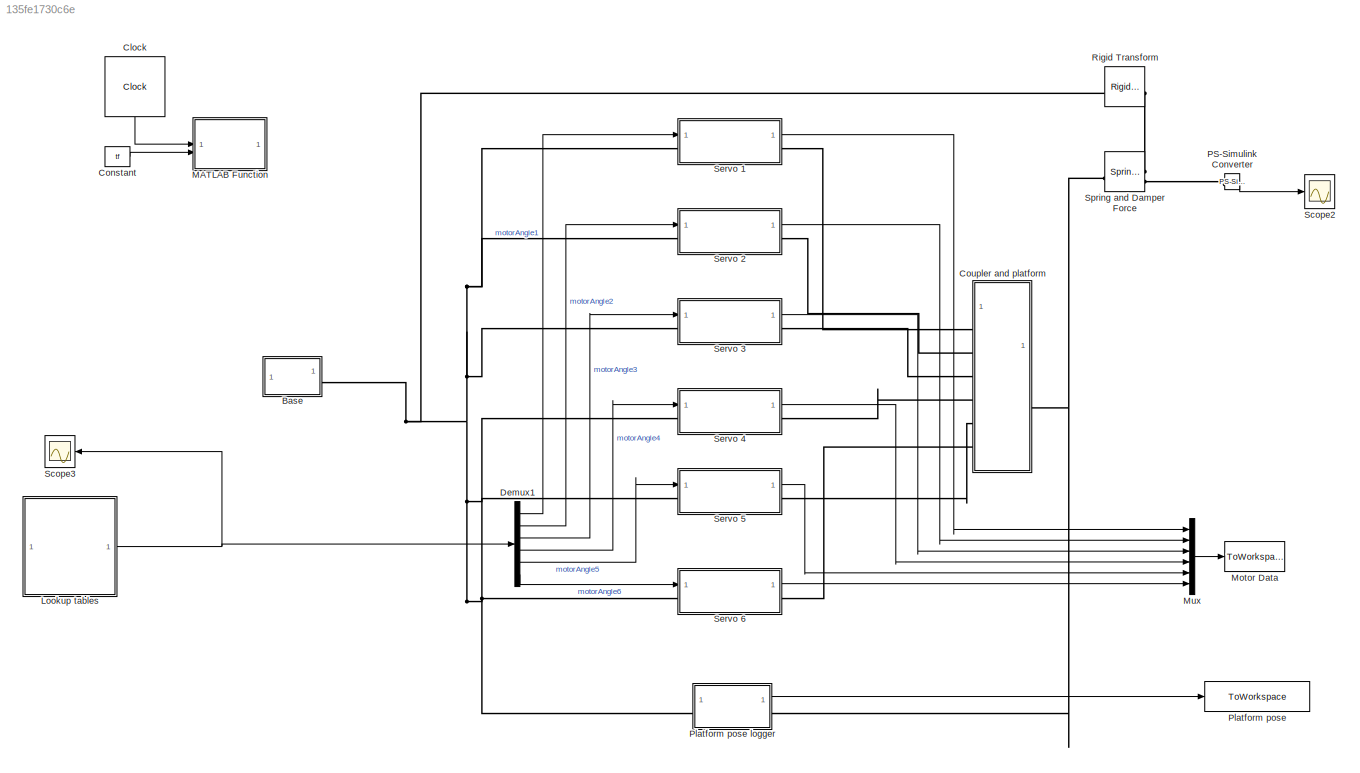
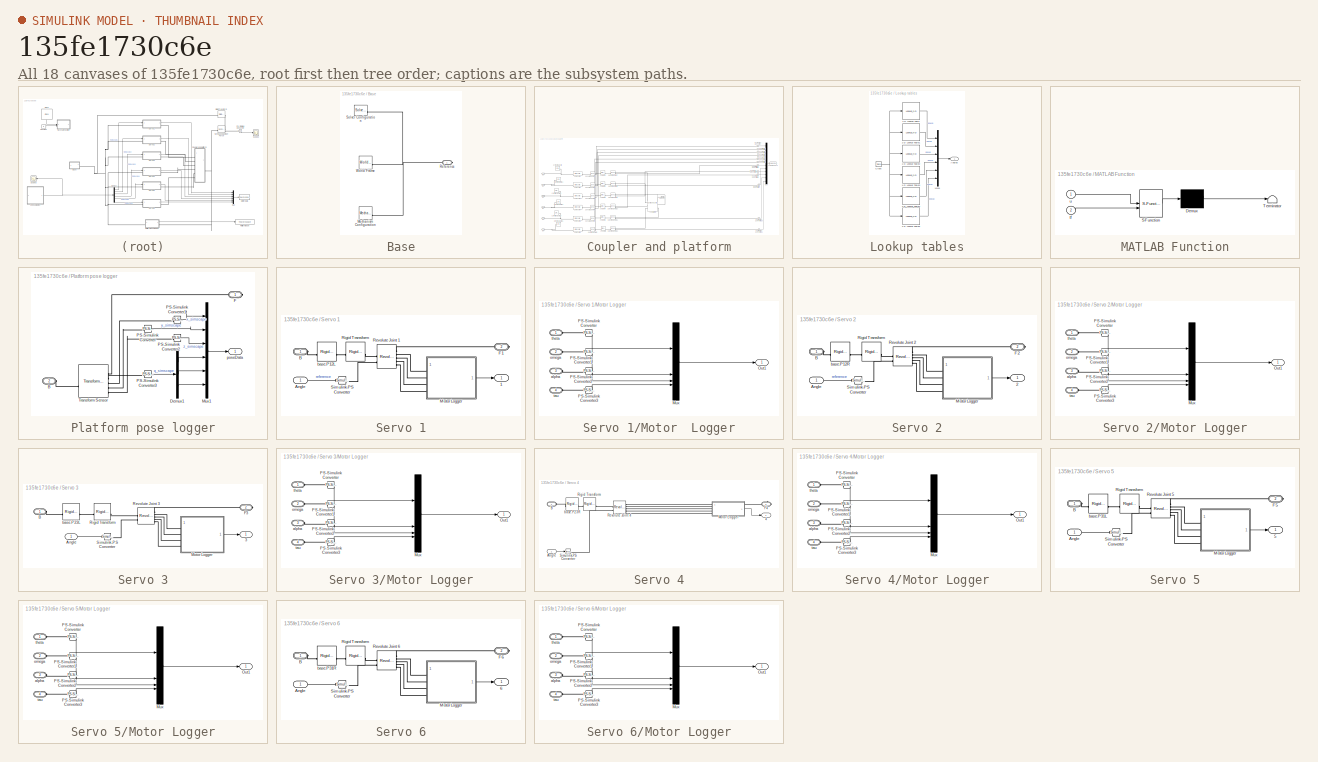
[diagram: thumbnail index - all 18 canvases of the model, root first then tree order]
MODEL slx_135fe1730c6e
KIND model
CONFIG AbsTol = 1e-4
CONFIG EnableMultiTasking = off
CONFIG FixedStep = 1e-4
CONFIG MaxStep = 1e-4
CONFIG MinStep = auto
CONFIG RelTol = 1e-4
CONFIG SampleTimeConstraint = Unconstrained
CONFIG SolverName = FixedStepAuto
CONFIG StartTime = 0.0
CONFIG StopTime = tf
BLOCK [SubSystem] Base
BLOCK [Reference] Base/Mechanism Configuration  REF=sm_lib/Utilities/Mechanism
Configuration
  SourceBlock = sm_lib/Utilities/Mechanism\nConfiguration
  SourceType = Mechanism\nConfiguration
BLOCK [PMIOPort] Base/Reference
  Side = Right
BLOCK [Reference] Base/Solver Configuration  REF=nesl_utility/Solver
Configuration
  SourceBlock = nesl_utility/Solver\nConfiguration
  SourceType = Solver\nConfiguration
BLOCK [Reference] Base/World Frame  REF=sm_lib/Frames and
Transforms/World Frame
  SourceBlock = sm_lib/Frames and\nTransforms/World Frame
  SourceType = World Frame
BLOCK [Clock] Clock
  DisplayTime = on
  NameLocation = left
BLOCK [Constant] Constant
  Value = tf
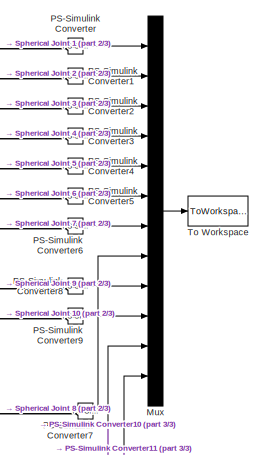
[diagram: Coupler and platform - part 1/3, top right region]
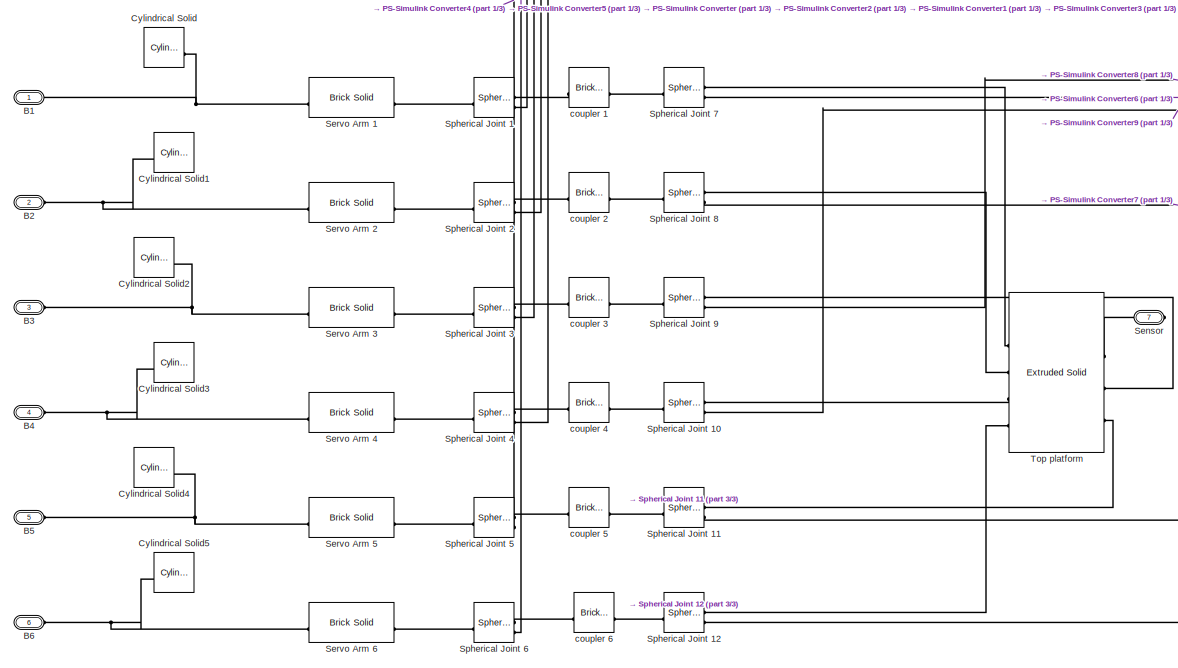
[diagram: Coupler and platform - part 2/3, left side, full height]
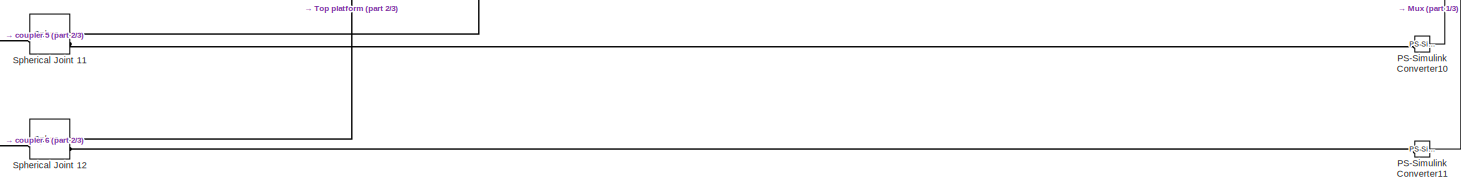
[diagram: Coupler and platform - part 3/3, bottom center region]
BLOCK [SubSystem] Coupler and platform
BLOCK [PMIOPort] Coupler and platform/B1
  Side = Left
BLOCK [PMIOPort] Coupler and platform/B2
  Port = 2
  Side = Left
BLOCK [PMIOPort] Coupler and platform/B3
  Port = 3
  Side = Left
BLOCK [PMIOPort] Coupler and platform/B4
  Port = 4
  Side = Left
BLOCK [PMIOPort] Coupler and platform/B5
  Port = 5
  Side = Left
BLOCK [PMIOPort] Coupler and platform/B6
  Port = 6
  Side = Left
BLOCK [Reference] Coupler and platform/Cylindrical Solid  REF=sm_lib/Body Elements/Cylindrical Solid
  SourceBlock = sm_lib/Body Elements/Cylindrical Solid
  SourceType = Cylindrical Solid
BLOCK [Reference] Coupler and platform/Cylindrical Solid1  REF=sm_lib/Body Elements/Cylindrical Solid
  SourceBlock = sm_lib/Body Elements/Cylindrical Solid
  SourceType = Cylindrical Solid
BLOCK [Reference] Coupler and platform/Cylindrical Solid2  REF=sm_lib/Body Elements/Cylindrical Solid
  SourceBlock = sm_lib/Body Elements/Cylindrical Solid
  SourceType = Cylindrical Solid
BLOCK [Reference] Coupler and platform/Cylindrical Solid3  REF=sm_lib/Body Elements/Cylindrical Solid
  SourceBlock = sm_lib/Body Elements/Cylindrical Solid
  SourceType = Cylindrical Solid
BLOCK [Reference] Coupler and platform/Cylindrical Solid4  REF=sm_lib/Body Elements/Cylindrical Solid
  SourceBlock = sm_lib/Body Elements/Cylindrical Solid
  SourceType = Cylindrical Solid
BLOCK [Reference] Coupler and platform/Cylindrical Solid5  REF=sm_lib/Body Elements/Cylindrical Solid
  SourceBlock = sm_lib/Body Elements/Cylindrical Solid
  SourceType = Cylindrical Solid
BLOCK [Mux] Coupler and platform/Mux
  DisplayOption = bar
  Inputs = 12
BLOCK [Reference] Coupler and platform/PS-Simulink Converter  REF=nesl_utility/PS-Simulink
Converter
  SourceBlock = nesl_utility/PS-Simulink\nConverter
  SourceType = PS-Simulink\nConverter
BLOCK [Reference] Coupler and platform/PS-Simulink Converter1  REF=nesl_utility/PS-Simulink
Converter
  SourceBlock = nesl_utility/PS-Simulink\nConverter
  SourceType = PS-Simulink\nConverter
BLOCK [Reference] Coupler and platform/PS-Simulink Converter10  REF=nesl_utility/PS-Simulink
Converter
  SourceBlock = nesl_utility/PS-Simulink\nConverter
  SourceType = PS-Simulink\nConverter
BLOCK [Reference] Coupler and platform/PS-Simulink Converter11  REF=nesl_utility/PS-Simulink
Converter
  SourceBlock = nesl_utility/PS-Simulink\nConverter
  SourceType = PS-Simulink\nConverter
BLOCK [Reference] Coupler and platform/PS-Simulink Converter2  REF=nesl_utility/PS-Simulink
Converter
  SourceBlock = nesl_utility/PS-Simulink\nConverter
  SourceType = PS-Simulink\nConverter
BLOCK [Reference] Coupler and platform/PS-Simulink Converter3  REF=nesl_utility/PS-Simulink
Converter
  SourceBlock = nesl_utility/PS-Simulink\nConverter
  SourceType = PS-Simulink\nConverter
BLOCK [Reference] Coupler and platform/PS-Simulink Converter4  REF=nesl_utility/PS-Simulink
Converter
  SourceBlock = nesl_utility/PS-Simulink\nConverter
  SourceType = PS-Simulink\nConverter
BLOCK [Reference] Coupler and platform/PS-Simulink Converter5  REF=nesl_utility/PS-Simulink
Converter
  SourceBlock = nesl_utility/PS-Simulink\nConverter
  SourceType = PS-Simulink\nConverter
BLOCK [Reference] Coupler and platform/PS-Simulink Converter6  REF=nesl_utility/PS-Simulink
Converter
  SourceBlock = nesl_utility/PS-Simulink\nConverter
  SourceType = PS-Simulink\nConverter
BLOCK [Reference] Coupler and platform/PS-Simulink Converter7  REF=nesl_utility/PS-Simulink
Converter
  SourceBlock = nesl_utility/PS-Simulink\nConverter
  SourceType = PS-Simulink\nConverter
BLOCK [Reference] Coupler and platform/PS-Simulink Converter8  REF=nesl_utility/PS-Simulink
Converter
  SourceBlock = nesl_utility/PS-Simulink\nConverter
  SourceType = PS-Simulink\nConverter
BLOCK [Reference] Coupler and platform/PS-Simulink Converter9  REF=nesl_utility/PS-Simulink
Converter
  SourceBlock = nesl_utility/PS-Simulink\nConverter
  SourceType = PS-Simulink\nConverter
BLOCK [PMIOPort] Coupler and platform/Sensor
  NameLocation = top
  Port = 7
  Side = Right
BLOCK [Reference] Coupler and platform/Servo Arm 1  REF=sm_lib/Body Elements/Brick Solid
  SourceBlock = sm_lib/Body Elements/Brick Solid
  SourceType = Brick Solid
BLOCK [Reference] Coupler and platform/Servo Arm 2  REF=sm_lib/Body Elements/Brick Solid
  SourceBlock = sm_lib/Body Elements/Brick Solid
  SourceType = Brick Solid
BLOCK [Reference] Coupler and platform/Servo Arm 3  REF=sm_lib/Body Elements/Brick Solid
  SourceBlock = sm_lib/Body Elements/Brick Solid
  SourceType = Brick Solid
BLOCK [Reference] Coupler and platform/Servo Arm 4  REF=sm_lib/Body Elements/Brick Solid
  SourceBlock = sm_lib/Body Elements/Brick Solid
  SourceType = Brick Solid
BLOCK [Reference] Coupler and platform/Servo Arm 5  REF=sm_lib/Body Elements/Brick Solid
  SourceBlock = sm_lib/Body Elements/Brick Solid
  SourceType = Brick Solid
BLOCK [Reference] Coupler and platform/Servo Arm 6  REF=sm_lib/Body Elements/Brick Solid
  SourceBlock = sm_lib/Body Elements/Brick Solid
  SourceType = Brick Solid
BLOCK [Reference] Coupler and platform/Spherical Joint 1  REF=sm_lib/Joints/Spherical
Joint
  SourceBlock = sm_lib/Joints/Spherical\nJoint
  SourceType = Spherical\nJoint
BLOCK [Reference] Coupler and platform/Spherical Joint 10  REF=sm_lib/Joints/Spherical
Joint
  SourceBlock = sm_lib/Joints/Spherical\nJoint
  SourceType = Spherical\nJoint
BLOCK [Reference] Coupler and platform/Spherical Joint 11  REF=sm_lib/Joints/Spherical
Joint
  SourceBlock = sm_lib/Joints/Spherical\nJoint
  SourceType = Spherical\nJoint
BLOCK [Reference] Coupler and platform/Spherical Joint 12  REF=sm_lib/Joints/Spherical
Joint
  SourceBlock = sm_lib/Joints/Spherical\nJoint
  SourceType = Spherical\nJoint
BLOCK [Reference] Coupler and platform/Spherical Joint 2  REF=sm_lib/Joints/Spherical
Joint
  SourceBlock = sm_lib/Joints/Spherical\nJoint
  SourceType = Spherical\nJoint
BLOCK [Reference] Coupler and platform/Spherical Joint 3  REF=sm_lib/Joints/Spherical
Joint
  SourceBlock = sm_lib/Joints/Spherical\nJoint
  SourceType = Spherical\nJoint
BLOCK [Reference] Coupler and platform/Spherical Joint 4  REF=sm_lib/Joints/Spherical
Joint
  SourceBlock = sm_lib/Joints/Spherical\nJoint
  SourceType = Spherical\nJoint
BLOCK [Reference] Coupler and platform/Spherical Joint 5  REF=sm_lib/Joints/Spherical
Joint
  SourceBlock = sm_lib/Joints/Spherical\nJoint
  SourceType = Spherical\nJoint
BLOCK [Reference] Coupler and platform/Spherical Joint 6  REF=sm_lib/Joints/Spherical
Joint
  SourceBlock = sm_lib/Joints/Spherical\nJoint
  SourceType = Spherical\nJoint
BLOCK [Reference] Coupler and platform/Spherical Joint 7  REF=sm_lib/Joints/Spherical
Joint
  SourceBlock = sm_lib/Joints/Spherical\nJoint
  SourceType = Spherical\nJoint
BLOCK [Reference] Coupler and platform/Spherical Joint 8  REF=sm_lib/Joints/Spherical
Joint
  SourceBlock = sm_lib/Joints/Spherical\nJoint
  SourceType = Spherical\nJoint
BLOCK [Reference] Coupler and platform/Spherical Joint 9  REF=sm_lib/Joints/Spherical
Joint
  SourceBlock = sm_lib/Joints/Spherical\nJoint
  SourceType = Spherical\nJoint
BLOCK [ToWorkspace] Coupler and platform/To Workspace
  FixptAsFi = on
  MaxDataPoints = inf
  SampleTime = -1
  SaveFormat = Timeseries
  VariableName = sp_joints
BLOCK [Reference] Coupler and platform/Top platform  REF=sm_lib/Body Elements/Extruded Solid
  SourceBlock = sm_lib/Body Elements/Extruded Solid
  SourceType = Extruded Solid
BLOCK [Reference] Coupler and platform/coupler 1  REF=sm_lib/Body Elements/Brick Solid
  SourceBlock = sm_lib/Body Elements/Brick Solid
  SourceType = Brick Solid
BLOCK [Reference] Coupler and platform/coupler 2  REF=sm_lib/Body Elements/Brick Solid
  SourceBlock = sm_lib/Body Elements/Brick Solid
  SourceType = Brick Solid
BLOCK [Reference] Coupler and platform/coupler 3  REF=sm_lib/Body Elements/Brick Solid
  SourceBlock = sm_lib/Body Elements/Brick Solid
  SourceType = Brick Solid
BLOCK [Reference] Coupler and platform/coupler 4  REF=sm_lib/Body Elements/Brick Solid
  SourceBlock = sm_lib/Body Elements/Brick Solid
  SourceType = Brick Solid
BLOCK [Reference] Coupler and platform/coupler 5  REF=sm_lib/Body Elements/Brick Solid
  SourceBlock = sm_lib/Body Elements/Brick Solid
  SourceType = Brick Solid
BLOCK [Reference] Coupler and platform/coupler 6  REF=sm_lib/Body Elements/Brick Solid
  SourceBlock = sm_lib/Body Elements/Brick Solid
  SourceType = Brick Solid
BLOCK [Demux] Demux1
  Outputs = 6
BLOCK [SubSystem] Lookup tables
BLOCK [Lookup_n-D] Lookup tables/1-D Lookup Table
  BreakpointsForDimension1 = motorAngles(:,1)
  InputPortMap = u0
  InternalRulePriority = Speed
  InterpMethod = Cubic spline
  NumberOfTableDimensions = 1
  RndMeth = Simplest
  Table = motorAngles(:,2)
BLOCK [Lookup_n-D] Lookup tables/1-D Lookup Table1
  BreakpointsForDimension1 = motorAngles(:,1)
  InputPortMap = u0
  InternalRulePriority = Speed
  InterpMethod = Cubic spline
  NumberOfTableDimensions = 1
  RndMeth = Simplest
  Table = motorAngles(:,3)
BLOCK [Lookup_n-D] Lookup tables/1-D Lookup Table2
  BreakpointsForDimension1 = motorAngles(:,1)
  InputPortMap = u0
  InternalRulePriority = Speed
  InterpMethod = Cubic spline
  NumberOfTableDimensions = 1
  RndMeth = Simplest
  Table = motorAngles(:,4)
BLOCK [Lookup_n-D] Lookup tables/1-D Lookup Table3
  BreakpointsForDimension1 = motorAngles(:,1)
  InputPortMap = u0
  InternalRulePriority = Speed
  InterpMethod = Cubic spline
  NumberOfTableDimensions = 1
  RndMeth = Simplest
  Table = motorAngles(:,5)
BLOCK [Lookup_n-D] Lookup tables/1-D Lookup Table4
  BreakpointsForDimension1 = motorAngles(:,1)
  InputPortMap = u0
  InternalRulePriority = Speed
  InterpMethod = Cubic spline
  NumberOfTableDimensions = 1
  RndMeth = Simplest
  Table = motorAngles(:,6)
BLOCK [Lookup_n-D] Lookup tables/1-D Lookup Table5
  BreakpointsForDimension1 = motorAngles(:,1)
  InputPortMap = u0
  InternalRulePriority = Speed
  InterpMethod = Cubic spline
  NumberOfTableDimensions = 1
  RndMeth = Simplest
  Table = motorAngles(:,7)
BLOCK [Outport] Lookup tables/Angles
BLOCK [Clock] Lookup tables/Clock
BLOCK [Mux] Lookup tables/Mux1
  DisplayOption = bar
  Inputs = 6
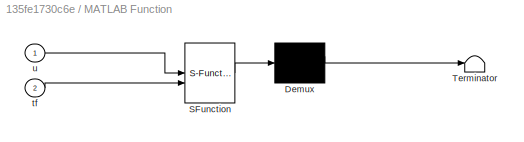
BLOCK [SubSystem] MATLAB Function
  ErrorFcn = Stateflow.Translate.translate
  PermitHierarchicalResolution = ExplicitOnly
  SFBlockType = MATLAB Function
  TreatAsAtomicUnit = on
BLOCK [Demux] MATLAB Function/ Demux 
  Outputs = 1
BLOCK [S-Function] MATLAB Function/ SFunction 
  EnableBusSupport = on
  FunctionName = sf_sfun
  PortCounts = [2 1]
  SFcnIsStateOwnerBlock = off
  SFunctionDeploymentMode = off
  Tag = Stateflow S-Function 2
BLOCK [Terminator] MATLAB Function/ Terminator 
BLOCK [Inport] MATLAB Function/tf
  Port = 2
BLOCK [Inport] MATLAB Function/u
BLOCK [ToWorkspace] Motor Data
  FixptAsFi = on
  MaxDataPoints = inf
  SampleTime = -1
  SaveFormat = Timeseries
  VariableName = simout
BLOCK [Mux] Mux
  DisplayOption = bar
  Inputs = 6
BLOCK [Reference] PS-Simulink Converter  REF=nesl_utility/PS-Simulink
Converter
  Commented = on
  SourceBlock = nesl_utility/PS-Simulink\nConverter
  SourceType = PS-Simulink\nConverter
BLOCK [ToWorkspace] Platform pose
  FixptAsFi = on
  MaxDataPoints = inf
  SampleTime = -1
  SaveFormat = Timeseries
  VariableName = pose_simscape
BLOCK [SubSystem] Platform pose logger
BLOCK [PMIOPort] Platform pose logger/B
  Port = 2
  Side = Left
BLOCK [Demux] Platform pose logger/Demux1
  Outputs = 3
BLOCK [PMIOPort] Platform pose logger/F
  NameLocation = top
  Side = Right
BLOCK [Mux] Platform pose logger/Mux1
  DisplayOption = bar
  Inputs = 6
BLOCK [Reference] Platform pose logger/PS-Simulink Converter  REF=nesl_utility/PS-Simulink
Converter
  SourceBlock = nesl_utility/PS-Simulink\nConverter
  SourceType = PS-Simulink\nConverter
BLOCK [Reference] Platform pose logger/PS-Simulink Converter1  REF=nesl_utility/PS-Simulink
Converter
  SourceBlock = nesl_utility/PS-Simulink\nConverter
  SourceType = PS-Simulink\nConverter
BLOCK [Reference] Platform pose logger/PS-Simulink Converter2  REF=nesl_utility/PS-Simulink
Converter
  SourceBlock = nesl_utility/PS-Simulink\nConverter
  SourceType = PS-Simulink\nConverter
BLOCK [Reference] Platform pose logger/PS-Simulink Converter3  REF=nesl_utility/PS-Simulink
Converter
  SourceBlock = nesl_utility/PS-Simulink\nConverter
  SourceType = PS-Simulink\nConverter
BLOCK [Reference] Platform pose logger/Transform Sensor  REF=sm_lib/Frames and
Transforms/Transform
Sensor
  SourceBlock = sm_lib/Frames and\nTransforms/Transform\nSensor
  SourceType = Transform\nSensor
BLOCK [Outport] Platform pose logger/poseData
BLOCK [Reference] Rigid Transform  REF=sm_lib/Frames and
Transforms/Rigid
Transform
  Commented = on
  SourceBlock = sm_lib/Frames and\nTransforms/Rigid\nTransform
  SourceType = Rigid\nTransform
BLOCK [Scope] Scope2
  Commented = on
  Floating = off
  NumInputPorts = 3
  ScopeSpecificationString = Simulink.scopes.TimeScopeBlockCfg('CurrentConfiguration', extmgr.ConfigurationSet(extmgr.Configuration('Core','General UI',true),extmgr.Configuration('Core','Source UI',true),extmgr.Configuration('Sources','WiredSimulink',true,'DataLoggingVariableName','ScopeData1'),extmgr.Configuration('Visuals','Time Domain',true,'SerializedDisplays',{struct('MinYLimReal','-203.85819','MaxYLimReal','22.65091','Y...<+1643ch>
BLOCK [Scope] Scope3
  Floating = off
  NameLocation = top
  NumInputPorts = 1
  ScopeSpecificationString = Simulink.scopes.TimeScopeBlockCfg('CurrentConfiguration', extmgr.ConfigurationSet(extmgr.Configuration('Core','General UI',true),extmgr.Configuration('Core','Source UI',true),extmgr.Configuration('Sources','WiredSimulink',true,'DataLoggingVariableName','ScopeData2'),extmgr.Configuration('Visuals','Time Domain',true,'SerializedDisplays',{struct('MinYLimReal','-0.00000000000000014','MaxYLimReal','0....<+1660ch>
BLOCK [SubSystem] Servo 1
BLOCK [Outport] Servo 1/1
BLOCK [Inport] Servo 1/Angle
BLOCK [PMIOPort] Servo 1/B
  Side = Left
BLOCK [PMIOPort] Servo 1/F1
  NameLocation = top
  Port = 2
  Side = Right
BLOCK [SubSystem] Servo 1/Motor  Logger
BLOCK [Mux] Servo 1/Motor  Logger/Mux
  DisplayOption = bar
BLOCK [Outport] Servo 1/Motor  Logger/Out1
BLOCK [Reference] Servo 1/Motor  Logger/PS-Simulink Converter  REF=nesl_utility/PS-Simulink
Converter
  SourceBlock = nesl_utility/PS-Simulink\nConverter
  SourceType = PS-Simulink\nConverter
BLOCK [Reference] Servo 1/Motor  Logger/PS-Simulink Converter1  REF=nesl_utility/PS-Simulink
Converter
  SourceBlock = nesl_utility/PS-Simulink\nConverter
  SourceType = PS-Simulink\nConverter
BLOCK [Reference] Servo 1/Motor  Logger/PS-Simulink Converter2  REF=nesl_utility/PS-Simulink
Converter
  SourceBlock = nesl_utility/PS-Simulink\nConverter
  SourceType = PS-Simulink\nConverter
BLOCK [Reference] Servo 1/Motor  Logger/PS-Simulink Converter3  REF=nesl_utility/PS-Simulink
Converter
  SourceBlock = nesl_utility/PS-Simulink\nConverter
  SourceType = PS-Simulink\nConverter
BLOCK [PMIOPort] Servo 1/Motor  Logger/alpha
  Port = 3
  Side = Left
BLOCK [PMIOPort] Servo 1/Motor  Logger/omega
  Port = 2
  Side = Left
BLOCK [PMIOPort] Servo 1/Motor  Logger/tau
  Port = 4
  Side = Left
BLOCK [PMIOPort] Servo 1/Motor  Logger/theta
  Side = Left
BLOCK [Reference] Servo 1/Revolute Joint 1  REF=sm_lib/Joints/Revolute Joint
  SourceBlock = sm_lib/Joints/Revolute Joint
  SourceType = Revolute Joint
BLOCK [Reference] Servo 1/Rigid Transform  REF=sm_lib/Frames and
Transforms/Rigid
Transform
  SourceBlock = sm_lib/Frames and\nTransforms/Rigid\nTransform
  SourceType = Rigid\nTransform
BLOCK [Reference] Servo 1/Simulink-PS Converter  REF=nesl_utility/Simulink-PS
Converter
  SourceBlock = nesl_utility/Simulink-PS\nConverter
  SourceType = Simulink-PS\nConverter
BLOCK [Reference] Servo 1/base.P12L  REF=sm_lib/Frames and
Transforms/Rigid
Transform
  SourceBlock = sm_lib/Frames and\nTransforms/Rigid\nTransform
  SourceType = Rigid\nTransform
BLOCK [SubSystem] Servo 2
BLOCK [Outport] Servo 2/2
BLOCK [Inport] Servo 2/Angle
BLOCK [PMIOPort] Servo 2/B
  Side = Left
BLOCK [PMIOPort] Servo 2/F2
  NameLocation = top
  Port = 2
  Side = Right
BLOCK [SubSystem] Servo 2/Motor Logger
BLOCK [Mux] Servo 2/Motor Logger/Mux
  DisplayOption = bar
BLOCK [Outport] Servo 2/Motor Logger/Out1
BLOCK [Reference] Servo 2/Motor Logger/PS-Simulink Converter  REF=nesl_utility/PS-Simulink
Converter
  SourceBlock = nesl_utility/PS-Simulink\nConverter
  SourceType = PS-Simulink\nConverter
BLOCK [Reference] Servo 2/Motor Logger/PS-Simulink Converter1  REF=nesl_utility/PS-Simulink
Converter
  SourceBlock = nesl_utility/PS-Simulink\nConverter
  SourceType = PS-Simulink\nConverter
BLOCK [Reference] Servo 2/Motor Logger/PS-Simulink Converter2  REF=nesl_utility/PS-Simulink
Converter
  SourceBlock = nesl_utility/PS-Simulink\nConverter
  SourceType = PS-Simulink\nConverter
BLOCK [Reference] Servo 2/Motor Logger/PS-Simulink Converter3  REF=nesl_utility/PS-Simulink
Converter
  SourceBlock = nesl_utility/PS-Simulink\nConverter
  SourceType = PS-Simulink\nConverter
BLOCK [PMIOPort] Servo 2/Motor Logger/alpha
  Port = 3
  Side = Left
BLOCK [PMIOPort] Servo 2/Motor Logger/omega
  Port = 2
  Side = Left
BLOCK [PMIOPort] Servo 2/Motor Logger/tau
  Port = 4
  Side = Left
BLOCK [PMIOPort] Servo 2/Motor Logger/theta
  Side = Left
BLOCK [Reference] Servo 2/Revolute Joint 2  REF=sm_lib/Joints/Revolute Joint
  SourceBlock = sm_lib/Joints/Revolute Joint
  SourceType = Revolute Joint
BLOCK [Reference] Servo 2/Rigid Transform  REF=sm_lib/Frames and
Transforms/Rigid
Transform
  SourceBlock = sm_lib/Frames and\nTransforms/Rigid\nTransform
  SourceType = Rigid\nTransform
BLOCK [Reference] Servo 2/Simulink-PS Converter  REF=nesl_utility/Simulink-PS
Converter
  SourceBlock = nesl_utility/Simulink-PS\nConverter
  SourceType = Simulink-PS\nConverter
BLOCK [Reference] Servo 2/base.P12R  REF=sm_lib/Frames and
Transforms/Rigid
Transform
  SourceBlock = sm_lib/Frames and\nTransforms/Rigid\nTransform
  SourceType = Rigid\nTransform
BLOCK [SubSystem] Servo 3
BLOCK [Outport] Servo 3/3
BLOCK [Inport] Servo 3/Angle
BLOCK [PMIOPort] Servo 3/B
  Side = Left
BLOCK [PMIOPort] Servo 3/F3
  NameLocation = top
  Port = 2
  Side = Right
BLOCK [SubSystem] Servo 3/Motor Logger
BLOCK [Mux] Servo 3/Motor Logger/Mux
  DisplayOption = bar
BLOCK [Outport] Servo 3/Motor Logger/Out1
BLOCK [Reference] Servo 3/Motor Logger/PS-Simulink Converter  REF=nesl_utility/PS-Simulink
Converter
  SourceBlock = nesl_utility/PS-Simulink\nConverter
  SourceType = PS-Simulink\nConverter
BLOCK [Reference] Servo 3/Motor Logger/PS-Simulink Converter1  REF=nesl_utility/PS-Simulink
Converter
  SourceBlock = nesl_utility/PS-Simulink\nConverter
  SourceType = PS-Simulink\nConverter
BLOCK [Reference] Servo 3/Motor Logger/PS-Simulink Converter2  REF=nesl_utility/PS-Simulink
Converter
  SourceBlock = nesl_utility/PS-Simulink\nConverter
  SourceType = PS-Simulink\nConverter
BLOCK [Reference] Servo 3/Motor Logger/PS-Simulink Converter3  REF=nesl_utility/PS-Simulink
Converter
  SourceBlock = nesl_utility/PS-Simulink\nConverter
  SourceType = PS-Simulink\nConverter
BLOCK [PMIOPort] Servo 3/Motor Logger/alpha
  Port = 3
  Side = Left
BLOCK [PMIOPort] Servo 3/Motor Logger/omega
  Port = 2
  Side = Left
BLOCK [PMIOPort] Servo 3/Motor Logger/tau
  Port = 4
  Side = Left
BLOCK [PMIOPort] Servo 3/Motor Logger/theta
  Side = Left
BLOCK [Reference] Servo 3/Revolute Joint 3  REF=sm_lib/Joints/Revolute Joint
  SourceBlock = sm_lib/Joints/Revolute Joint
  SourceType = Revolute Joint
BLOCK [Reference] Servo 3/Rigid Transform  REF=sm_lib/Frames and
Transforms/Rigid
Transform
  SourceBlock = sm_lib/Frames and\nTransforms/Rigid\nTransform
  SourceType = Rigid\nTransform
BLOCK [Reference] Servo 3/Simulink-PS Converter  REF=nesl_utility/Simulink-PS
Converter
  SourceBlock = nesl_utility/Simulink-PS\nConverter
  SourceType = Simulink-PS\nConverter
BLOCK [Reference] Servo 3/base.P23L  REF=sm_lib/Frames and
Transforms/Rigid
Transform
  SourceBlock = sm_lib/Frames and\nTransforms/Rigid\nTransform
  SourceType = Rigid\nTransform
BLOCK [SubSystem] Servo 4
BLOCK [Outport] Servo 4/4
BLOCK [Inport] Servo 4/Angle
BLOCK [PMIOPort] Servo 4/B
  Side = Left
BLOCK [PMIOPort] Servo 4/F4
  NameLocation = top
  Port = 2
  Side = Right
BLOCK [SubSystem] Servo 4/Motor Logger
BLOCK [Mux] Servo 4/Motor Logger/Mux
  DisplayOption = bar
BLOCK [Outport] Servo 4/Motor Logger/Out1
BLOCK [Reference] Servo 4/Motor Logger/PS-Simulink Converter  REF=nesl_utility/PS-Simulink
Converter
  SourceBlock = nesl_utility/PS-Simulink\nConverter
  SourceType = PS-Simulink\nConverter
BLOCK [Reference] Servo 4/Motor Logger/PS-Simulink Converter1  REF=nesl_utility/PS-Simulink
Converter
  SourceBlock = nesl_utility/PS-Simulink\nConverter
  SourceType = PS-Simulink\nConverter
BLOCK [Reference] Servo 4/Motor Logger/PS-Simulink Converter2  REF=nesl_utility/PS-Simulink
Converter
  SourceBlock = nesl_utility/PS-Simulink\nConverter
  SourceType = PS-Simulink\nConverter
BLOCK [Reference] Servo 4/Motor Logger/PS-Simulink Converter3  REF=nesl_utility/PS-Simulink
Converter
  SourceBlock = nesl_utility/PS-Simulink\nConverter
  SourceType = PS-Simulink\nConverter
BLOCK [PMIOPort] Servo 4/Motor Logger/alpha
  Port = 3
  Side = Left
BLOCK [PMIOPort] Servo 4/Motor Logger/omega
  Port = 2
  Side = Left
BLOCK [PMIOPort] Servo 4/Motor Logger/tau
  Port = 4
  Side = Left
BLOCK [PMIOPort] Servo 4/Motor Logger/theta
  Side = Left
BLOCK [Reference] Servo 4/Revolute Joint 4  REF=sm_lib/Joints/Revolute Joint
  SourceBlock = sm_lib/Joints/Revolute Joint
  SourceType = Revolute Joint
BLOCK [Reference] Servo 4/Rigid Transform  REF=sm_lib/Frames and
Transforms/Rigid
Transform
  SourceBlock = sm_lib/Frames and\nTransforms/Rigid\nTransform
  SourceType = Rigid\nTransform
BLOCK [Reference] Servo 4/Simulink-PS Converter  REF=nesl_utility/Simulink-PS
Converter
  SourceBlock = nesl_utility/Simulink-PS\nConverter
  SourceType = Simulink-PS\nConverter
BLOCK [Reference] Servo 4/base.P23R  REF=sm_lib/Frames and
Transforms/Rigid
Transform
  SourceBlock = sm_lib/Frames and\nTransforms/Rigid\nTransform
  SourceType = Rigid\nTransform
BLOCK [SubSystem] Servo 5
BLOCK [Outport] Servo 5/5
BLOCK [Inport] Servo 5/Angle
BLOCK [PMIOPort] Servo 5/B
  Side = Left
BLOCK [PMIOPort] Servo 5/F5
  NameLocation = top
  Port = 2
  Side = Right
BLOCK [SubSystem] Servo 5/Motor Logger
BLOCK [Mux] Servo 5/Motor Logger/Mux
  DisplayOption = bar
BLOCK [Outport] Servo 5/Motor Logger/Out1
BLOCK [Reference] Servo 5/Motor Logger/PS-Simulink Converter  REF=nesl_utility/PS-Simulink
Converter
  SourceBlock = nesl_utility/PS-Simulink\nConverter
  SourceType = PS-Simulink\nConverter
BLOCK [Reference] Servo 5/Motor Logger/PS-Simulink Converter1  REF=nesl_utility/PS-Simulink
Converter
  SourceBlock = nesl_utility/PS-Simulink\nConverter
  SourceType = PS-Simulink\nConverter
BLOCK [Reference] Servo 5/Motor Logger/PS-Simulink Converter2  REF=nesl_utility/PS-Simulink
Converter
  SourceBlock = nesl_utility/PS-Simulink\nConverter
  SourceType = PS-Simulink\nConverter
BLOCK [Reference] Servo 5/Motor Logger/PS-Simulink Converter3  REF=nesl_utility/PS-Simulink
Converter
  SourceBlock = nesl_utility/PS-Simulink\nConverter
  SourceType = PS-Simulink\nConverter
BLOCK [PMIOPort] Servo 5/Motor Logger/alpha
  Port = 3
  Side = Left
BLOCK [PMIOPort] Servo 5/Motor Logger/omega
  Port = 2
  Side = Left
BLOCK [PMIOPort] Servo 5/Motor Logger/tau
  Port = 4
  Side = Left
BLOCK [PMIOPort] Servo 5/Motor Logger/theta
  Side = Left
BLOCK [Reference] Servo 5/Revolute Joint 5  REF=sm_lib/Joints/Revolute Joint
  SourceBlock = sm_lib/Joints/Revolute Joint
  SourceType = Revolute Joint
BLOCK [Reference] Servo 5/Rigid Transform  REF=sm_lib/Frames and
Transforms/Rigid
Transform
  SourceBlock = sm_lib/Frames and\nTransforms/Rigid\nTransform
  SourceType = Rigid\nTransform
BLOCK [Reference] Servo 5/Simulink-PS Converter  REF=nesl_utility/Simulink-PS
Converter
  SourceBlock = nesl_utility/Simulink-PS\nConverter
  SourceType = Simulink-PS\nConverter
BLOCK [Reference] Servo 5/base.P31L  REF=sm_lib/Frames and
Transforms/Rigid
Transform
  SourceBlock = sm_lib/Frames and\nTransforms/Rigid\nTransform
  SourceType = Rigid\nTransform
BLOCK [SubSystem] Servo 6
BLOCK [Outport] Servo 6/6
BLOCK [Inport] Servo 6/Angle
BLOCK [PMIOPort] Servo 6/B
  Side = Left
BLOCK [PMIOPort] Servo 6/F6
  NameLocation = top
  Port = 2
  Side = Right
BLOCK [SubSystem] Servo 6/Motor Logger
BLOCK [Mux] Servo 6/Motor Logger/Mux
  DisplayOption = bar
BLOCK [Outport] Servo 6/Motor Logger/Out1
BLOCK [Reference] Servo 6/Motor Logger/PS-Simulink Converter  REF=nesl_utility/PS-Simulink
Converter
  SourceBlock = nesl_utility/PS-Simulink\nConverter
  SourceType = PS-Simulink\nConverter
BLOCK [Reference] Servo 6/Motor Logger/PS-Simulink Converter1  REF=nesl_utility/PS-Simulink
Converter
  SourceBlock = nesl_utility/PS-Simulink\nConverter
  SourceType = PS-Simulink\nConverter
BLOCK [Reference] Servo 6/Motor Logger/PS-Simulink Converter2  REF=nesl_utility/PS-Simulink
Converter
  SourceBlock = nesl_utility/PS-Simulink\nConverter
  SourceType = PS-Simulink\nConverter
BLOCK [Reference] Servo 6/Motor Logger/PS-Simulink Converter3  REF=nesl_utility/PS-Simulink
Converter
  SourceBlock = nesl_utility/PS-Simulink\nConverter
  SourceType = PS-Simulink\nConverter
BLOCK [PMIOPort] Servo 6/Motor Logger/alpha
  Port = 3
  Side = Left
BLOCK [PMIOPort] Servo 6/Motor Logger/omega
  Port = 2
  Side = Left
BLOCK [PMIOPort] Servo 6/Motor Logger/tau
  Port = 4
  Side = Left
BLOCK [PMIOPort] Servo 6/Motor Logger/theta
  Side = Left
BLOCK [Reference] Servo 6/Revolute Joint 6  REF=sm_lib/Joints/Revolute Joint
  SourceBlock = sm_lib/Joints/Revolute Joint
  SourceType = Revolute Joint
BLOCK [Reference] Servo 6/Rigid Transform  REF=sm_lib/Frames and
Transforms/Rigid
Transform
  SourceBlock = sm_lib/Frames and\nTransforms/Rigid\nTransform
  SourceType = Rigid\nTransform
BLOCK [Reference] Servo 6/Simulink-PS Converter  REF=nesl_utility/Simulink-PS
Converter
  SourceBlock = nesl_utility/Simulink-PS\nConverter
  SourceType = Simulink-PS\nConverter
BLOCK [Reference] Servo 6/base.P31R  REF=sm_lib/Frames and
Transforms/Rigid
Transform
  SourceBlock = sm_lib/Frames and\nTransforms/Rigid\nTransform
  SourceType = Rigid\nTransform
BLOCK [Reference] Spring and Damper Force  REF=sm_lib/Forces and
Torques/Spring and
Damper Force
  Commented = on
  SourceBlock = sm_lib/Forces and\nTorques/Spring and\nDamper Force
  SourceType = Spring and\nDamper Force
LINE Clock:1 -> MATLAB Function:1
LINE Constant:1 -> MATLAB Function:2
LINE Coupler and platform/Mux:1 -> Coupler and platform/To Workspace:1
LINE Coupler and platform/PS-Simulink Converter10:1 -> Coupler and platform/Mux:11
LINE Coupler and platform/PS-Simulink Converter11:1 -> Coupler and platform/Mux:12
LINE Coupler and platform/PS-Simulink Converter1:1 -> Coupler and platform/Mux:2
LINE Coupler and platform/PS-Simulink Converter2:1 -> Coupler and platform/Mux:3
LINE Coupler and platform/PS-Simulink Converter3:1 -> Coupler and platform/Mux:4
LINE Coupler and platform/PS-Simulink Converter4:1 -> Coupler and platform/Mux:5
LINE Coupler and platform/PS-Simulink Converter5:1 -> Coupler and platform/Mux:6
LINE Coupler and platform/PS-Simulink Converter6:1 -> Coupler and platform/Mux:7
LINE Coupler and platform/PS-Simulink Converter7:1 -> Coupler and platform/Mux:8
LINE Coupler and platform/PS-Simulink Converter8:1 -> Coupler and platform/Mux:9
LINE Coupler and platform/PS-Simulink Converter9:1 -> Coupler and platform/Mux:10
LINE Coupler and platform/PS-Simulink Converter:1 -> Coupler and platform/Mux:1
LINE Demux1:1 -> Servo 1:1
LINE Demux1:2 -> Servo 2:1
LINE Demux1:3 -> Servo 3:1
LINE Demux1:4 -> Servo 4:1
LINE Demux1:5 -> Servo 5:1
LINE Demux1:6 -> Servo 6:1
LINE Lookup tables/1-D Lookup Table1:1 -> Lookup tables/Mux1:2
LINE Lookup tables/1-D Lookup Table2:1 -> Lookup tables/Mux1:3
LINE Lookup tables/1-D Lookup Table3:1 -> Lookup tables/Mux1:4
LINE Lookup tables/1-D Lookup Table4:1 -> Lookup tables/Mux1:5
LINE Lookup tables/1-D Lookup Table5:1 -> Lookup tables/Mux1:6
LINE Lookup tables/1-D Lookup Table:1 -> Lookup tables/Mux1:1
NET Lookup tables/Clock:1 -> Lookup tables/1-D Lookup Table1:1, Lookup tables/1-D Lookup Table2:1, Lookup tables/1-D Lookup Table3:1, Lookup tables/1-D Lookup Table4:1, Lookup tables/1-D Lookup Table5:1, Lookup tables/1-D Lookup Table:1
LINE Lookup tables/Mux1:1 -> Lookup tables/Angles:1
NET Lookup tables:1 -> Demux1:1, Scope3:1
LINE Mux:1 -> Motor Data:1
LINE PS-Simulink Converter:1 -> Scope2:1
LINE Platform pose logger/Demux1:1 -> Platform pose logger/Mux1:4
LINE Platform pose logger/Demux1:2 -> Platform pose logger/Mux1:5
LINE Platform pose logger/Demux1:3 -> Platform pose logger/Mux1:6
LINE Platform pose logger/Mux1:1 -> Platform pose logger/poseData:1
LINE Platform pose logger/PS-Simulink Converter1:1 -> Platform pose logger/Mux1:1
LINE Platform pose logger/PS-Simulink Converter2:1 -> Platform pose logger/Mux1:3
LINE Platform pose logger/PS-Simulink Converter3:1 -> Platform pose logger/Demux1:1
LINE Platform pose logger/PS-Simulink Converter:1 -> Platform pose logger/Mux1:2
LINE Platform pose logger:1 -> Platform pose:1
LINE Servo 1/Angle:1 -> Servo 1/Simulink-PS Converter:1
LINE Servo 1/Motor  Logger/Mux:1 -> Servo 1/Motor  Logger/Out1:1
LINE Servo 1/Motor  Logger/PS-Simulink Converter1:1 -> Servo 1/Motor  Logger/Mux:2
LINE Servo 1/Motor  Logger/PS-Simulink Converter2:1 -> Servo 1/Motor  Logger/Mux:3
LINE Servo 1/Motor  Logger/PS-Simulink Converter3:1 -> Servo 1/Motor  Logger/Mux:4
LINE Servo 1/Motor  Logger/PS-Simulink Converter:1 -> Servo 1/Motor  Logger/Mux:1
LINE Servo 1/Motor  Logger:1 -> Servo 1/1:1
LINE Servo 1:1 -> Mux:1
LINE Servo 2/Angle:1 -> Servo 2/Simulink-PS Converter:1
LINE Servo 2/Motor Logger/Mux:1 -> Servo 2/Motor Logger/Out1:1
LINE Servo 2/Motor Logger/PS-Simulink Converter1:1 -> Servo 2/Motor Logger/Mux:2
LINE Servo 2/Motor Logger/PS-Simulink Converter2:1 -> Servo 2/Motor Logger/Mux:3
LINE Servo 2/Motor Logger/PS-Simulink Converter3:1 -> Servo 2/Motor Logger/Mux:4
LINE Servo 2/Motor Logger/PS-Simulink Converter:1 -> Servo 2/Motor Logger/Mux:1
LINE Servo 2/Motor Logger:1 -> Servo 2/2:1
LINE Servo 2:1 -> Mux:2
LINE Servo 3/Angle:1 -> Servo 3/Simulink-PS Converter:1
LINE Servo 3/Motor Logger/Mux:1 -> Servo 3/Motor Logger/Out1:1
LINE Servo 3/Motor Logger/PS-Simulink Converter1:1 -> Servo 3/Motor Logger/Mux:2
LINE Servo 3/Motor Logger/PS-Simulink Converter2:1 -> Servo 3/Motor Logger/Mux:3
LINE Servo 3/Motor Logger/PS-Simulink Converter3:1 -> Servo 3/Motor Logger/Mux:4
LINE Servo 3/Motor Logger/PS-Simulink Converter:1 -> Servo 3/Motor Logger/Mux:1
LINE Servo 3/Motor Logger:1 -> Servo 3/3:1
LINE Servo 3:1 -> Mux:3
LINE Servo 4/Angle:1 -> Servo 4/Simulink-PS Converter:1
LINE Servo 4/Motor Logger/Mux:1 -> Servo 4/Motor Logger/Out1:1
LINE Servo 4/Motor Logger/PS-Simulink Converter1:1 -> Servo 4/Motor Logger/Mux:2
LINE Servo 4/Motor Logger/PS-Simulink Converter2:1 -> Servo 4/Motor Logger/Mux:3
LINE Servo 4/Motor Logger/PS-Simulink Converter3:1 -> Servo 4/Motor Logger/Mux:4
LINE Servo 4/Motor Logger/PS-Simulink Converter:1 -> Servo 4/Motor Logger/Mux:1
LINE Servo 4/Motor Logger:1 -> Servo 4/4:1
LINE Servo 4:1 -> Mux:4
LINE Servo 5/Angle:1 -> Servo 5/Simulink-PS Converter:1
LINE Servo 5/Motor Logger/Mux:1 -> Servo 5/Motor Logger/Out1:1
LINE Servo 5/Motor Logger/PS-Simulink Converter1:1 -> Servo 5/Motor Logger/Mux:2
LINE Servo 5/Motor Logger/PS-Simulink Converter2:1 -> Servo 5/Motor Logger/Mux:3
LINE Servo 5/Motor Logger/PS-Simulink Converter3:1 -> Servo 5/Motor Logger/Mux:4
LINE Servo 5/Motor Logger/PS-Simulink Converter:1 -> Servo 5/Motor Logger/Mux:1
LINE Servo 5/Motor Logger:1 -> Servo 5/5:1
LINE Servo 5:1 -> Mux:5
LINE Servo 6/Angle:1 -> Servo 6/Simulink-PS Converter:1
LINE Servo 6/Motor Logger/Mux:1 -> Servo 6/Motor Logger/Out1:1
LINE Servo 6/Motor Logger/PS-Simulink Converter1:1 -> Servo 6/Motor Logger/Mux:2
LINE Servo 6/Motor Logger/PS-Simulink Converter2:1 -> Servo 6/Motor Logger/Mux:3
LINE Servo 6/Motor Logger/PS-Simulink Converter3:1 -> Servo 6/Motor Logger/Mux:4
LINE Servo 6/Motor Logger/PS-Simulink Converter:1 -> Servo 6/Motor Logger/Mux:1
LINE Servo 6/Motor Logger:1 -> Servo 6/6:1
LINE Servo 6:1 -> Mux:6
PNET net1: Base/Mechanism Configuration:RConn1 -- Base/Reference:RConn1 -- Base/Solver Configuration:RConn1 -- Base/World Frame:RConn1
PNET net2: Base:RConn1 -- Platform pose logger:LConn1 -- Rigid Transform:LConn1 -- Servo 1:LConn1 -- Servo 2:LConn1 -- Servo 3:LConn1 -- Servo 4:LConn1 -- Servo 5:LConn1 -- Servo 6:LConn1
PNET net3: Coupler and platform/B1:RConn1 -- Coupler and platform/Cylindrical Solid:RConn1 -- Coupler and platform/Servo Arm 1:LConn1
PNET net4: Coupler and platform/B2:RConn1 -- Coupler and platform/Cylindrical Solid1:LConn1 -- Coupler and platform/Servo Arm 2:LConn1
PNET net5: Coupler and platform/B3:RConn1 -- Coupler and platform/Cylindrical Solid2:RConn1 -- Coupler and platform/Servo Arm 3:LConn1
PNET net6: Coupler and platform/B4:RConn1 -- Coupler and platform/Cylindrical Solid3:LConn1 -- Coupler and platform/Servo Arm 4:LConn1
PNET net7: Coupler and platform/B5:RConn1 -- Coupler and platform/Cylindrical Solid4:RConn1 -- Coupler and platform/Servo Arm 5:LConn1
PNET net8: Coupler and platform/B6:RConn1 -- Coupler and platform/Cylindrical Solid5:LConn1 -- Coupler and platform/Servo Arm 6:LConn1
PLINE Coupler and platform/PS-Simulink Converter10:LConn1 -- Coupler and platform/Spherical Joint 11:RConn2
PLINE Coupler and platform/PS-Simulink Converter11:LConn1 -- Coupler and platform/Spherical Joint 12:RConn2
PLINE Coupler and platform/PS-Simulink Converter1:LConn1 -- Coupler and platform/Spherical Joint 2:RConn2
PLINE Coupler and platform/PS-Simulink Converter2:LConn1 -- Coupler and platform/Spherical Joint 3:RConn2
PLINE Coupler and platform/PS-Simulink Converter3:LConn1 -- Coupler and platform/Spherical Joint 4:RConn2
PLINE Coupler and platform/PS-Simulink Converter4:LConn1 -- Coupler and platform/Spherical Joint 5:RConn2
PLINE Coupler and platform/PS-Simulink Converter5:LConn1 -- Coupler and platform/Spherical Joint 6:RConn2
PLINE Coupler and platform/PS-Simulink Converter6:LConn1 -- Coupler and platform/Spherical Joint 7:RConn2
PLINE Coupler and platform/PS-Simulink Converter7:LConn1 -- Coupler and platform/Spherical Joint 8:RConn2
PLINE Coupler and platform/PS-Simulink Converter8:LConn1 -- Coupler and platform/Spherical Joint 9:RConn2
PLINE Coupler and platform/PS-Simulink Converter9:LConn1 -- Coupler and platform/Spherical Joint 10:RConn2
PLINE Coupler and platform/PS-Simulink Converter:LConn1 -- Coupler and platform/Spherical Joint 1:RConn2
PLINE Coupler and platform/Sensor:RConn1 -- Coupler and platform/Top platform:RConn1
PLINE Coupler and platform/Servo Arm 1:RConn1 -- Coupler and platform/Spherical Joint 1:LConn1
PLINE Coupler and platform/Servo Arm 2:RConn1 -- Coupler and platform/Spherical Joint 2:LConn1
PLINE Coupler and platform/Servo Arm 3:RConn1 -- Coupler and platform/Spherical Joint 3:LConn1
PLINE Coupler and platform/Servo Arm 4:RConn1 -- Coupler and platform/Spherical Joint 4:LConn1
PLINE Coupler and platform/Servo Arm 5:RConn1 -- Coupler and platform/Spherical Joint 5:LConn1
PLINE Coupler and platform/Servo Arm 6:RConn1 -- Coupler and platform/Spherical Joint 6:LConn1
PLINE Coupler and platform/Spherical Joint 10:LConn1 -- Coupler and platform/coupler 4:RConn1
PLINE Coupler and platform/Spherical Joint 10:RConn1 -- Coupler and platform/Top platform:LConn3
PLINE Coupler and platform/Spherical Joint 11:LConn1 -- Coupler and platform/coupler 5:RConn1
PLINE Coupler and platform/Spherical Joint 11:RConn1 -- Coupler and platform/Top platform:RConn3
PLINE Coupler and platform/Spherical Joint 12:LConn1 -- Coupler and platform/coupler 6:RConn1
PLINE Coupler and platform/Spherical Joint 12:RConn1 -- Coupler and platform/Top platform:LConn4
PLINE Coupler and platform/Spherical Joint 1:RConn1 -- Coupler and platform/coupler 1:LConn1
PLINE Coupler and platform/Spherical Joint 2:RConn1 -- Coupler and platform/coupler 2:LConn1
PLINE Coupler and platform/Spherical Joint 3:RConn1 -- Coupler and platform/coupler 3:LConn1
PLINE Coupler and platform/Spherical Joint 4:RConn1 -- Coupler and platform/coupler 4:LConn1
PLINE Coupler and platform/Spherical Joint 5:RConn1 -- Coupler and platform/coupler 5:LConn1
PLINE Coupler and platform/Spherical Joint 6:RConn1 -- Coupler and platform/coupler 6:LConn1
PLINE Coupler and platform/Spherical Joint 7:LConn1 -- Coupler and platform/coupler 1:RConn1
PLINE Coupler and platform/Spherical Joint 7:RConn1 -- Coupler and platform/Top platform:LConn1
PLINE Coupler and platform/Spherical Joint 8:LConn1 -- Coupler and platform/coupler 2:RConn1
PLINE Coupler and platform/Spherical Joint 8:RConn1 -- Coupler and platform/Top platform:LConn2
PLINE Coupler and platform/Spherical Joint 9:LConn1 -- Coupler and platform/coupler 3:RConn1
PLINE Coupler and platform/Spherical Joint 9:RConn1 -- Coupler and platform/Top platform:RConn2
PLINE Coupler and platform:LConn1 -- Servo 1:RConn1
PLINE Coupler and platform:LConn2 -- Servo 2:RConn1
PLINE Coupler and platform:LConn3 -- Servo 3:RConn1
PLINE Coupler and platform:LConn4 -- Servo 4:RConn1
PLINE Coupler and platform:LConn5 -- Servo 5:RConn1
PLINE Coupler and platform:LConn6 -- Servo 6:RConn1
PNET net9: Coupler and platform:RConn1 -- Platform pose logger:RConn1 -- Spring and Damper Force:LConn1
PLINE PS-Simulink Converter:LConn1 -- Spring and Damper Force:RConn2
PLINE Platform pose logger/B:RConn1 -- Platform pose logger/Transform Sensor:LConn1
PLINE Platform pose logger/F:RConn1 -- Platform pose logger/Transform Sensor:RConn1
PLINE Platform pose logger/PS-Simulink Converter1:LConn1 -- Platform pose logger/Transform Sensor:RConn3
PLINE Platform pose logger/PS-Simulink Converter2:LConn1 -- Platform pose logger/Transform Sensor:RConn5
PLINE Platform pose logger/PS-Simulink Converter3:LConn1 -- Platform pose logger/Transform Sensor:RConn2
PLINE Platform pose logger/PS-Simulink Converter:LConn1 -- Platform pose logger/Transform Sensor:RConn4
PLINE Rigid Transform:RConn1 -- Spring and Damper Force:RConn1
PLINE Servo 1/B:RConn1 -- Servo 1/base.P12L:LConn1
PLINE Servo 1/F1:RConn1 -- Servo 1/Revolute Joint 1:RConn1
PLINE Servo 1/Motor  Logger/PS-Simulink Converter1:LConn1 -- Servo 1/Motor  Logger/omega:RConn1
PLINE Servo 1/Motor  Logger/PS-Simulink Converter2:LConn1 -- Servo 1/Motor  Logger/alpha:RConn1
PLINE Servo 1/Motor  Logger/PS-Simulink Converter3:LConn1 -- Servo 1/Motor  Logger/tau:RConn1
PLINE Servo 1/Motor  Logger/PS-Simulink Converter:LConn1 -- Servo 1/Motor  Logger/theta:RConn1
PLINE Servo 1/Motor  Logger:LConn1 -- Servo 1/Revolute Joint 1:RConn2
PLINE Servo 1/Motor  Logger:LConn2 -- Servo 1/Revolute Joint 1:RConn3
PLINE Servo 1/Motor  Logger:LConn3 -- Servo 1/Revolute Joint 1:RConn4
PLINE Servo 1/Motor  Logger:LConn4 -- Servo 1/Revolute Joint 1:RConn5
PLINE Servo 1/Revolute Joint 1:LConn1 -- Servo 1/Rigid Transform:RConn1
PLINE Servo 1/Revolute Joint 1:LConn2 -- Servo 1/Simulink-PS Converter:RConn1
PLINE Servo 1/Rigid Transform:LConn1 -- Servo 1/base.P12L:RConn1
PLINE Servo 2/B:RConn1 -- Servo 2/base.P12R:LConn1
PLINE Servo 2/F2:RConn1 -- Servo 2/Revolute Joint 2:RConn1
PLINE Servo 2/Motor Logger/PS-Simulink Converter1:LConn1 -- Servo 2/Motor Logger/omega:RConn1
PLINE Servo 2/Motor Logger/PS-Simulink Converter2:LConn1 -- Servo 2/Motor Logger/alpha:RConn1
PLINE Servo 2/Motor Logger/PS-Simulink Converter3:LConn1 -- Servo 2/Motor Logger/tau:RConn1
PLINE Servo 2/Motor Logger/PS-Simulink Converter:LConn1 -- Servo 2/Motor Logger/theta:RConn1
PLINE Servo 2/Motor Logger:LConn1 -- Servo 2/Revolute Joint 2:RConn2
PLINE Servo 2/Motor Logger:LConn2 -- Servo 2/Revolute Joint 2:RConn3
PLINE Servo 2/Motor Logger:LConn3 -- Servo 2/Revolute Joint 2:RConn4
PLINE Servo 2/Motor Logger:LConn4 -- Servo 2/Revolute Joint 2:RConn5
PLINE Servo 2/Revolute Joint 2:LConn1 -- Servo 2/Rigid Transform:RConn1
PLINE Servo 2/Revolute Joint 2:LConn2 -- Servo 2/Simulink-PS Converter:RConn1
PLINE Servo 2/Rigid Transform:LConn1 -- Servo 2/base.P12R:RConn1
PLINE Servo 3/B:RConn1 -- Servo 3/base.P23L:LConn1
PLINE Servo 3/F3:RConn1 -- Servo 3/Revolute Joint 3:RConn1
PLINE Servo 3/Motor Logger/PS-Simulink Converter1:LConn1 -- Servo 3/Motor Logger/omega:RConn1
PLINE Servo 3/Motor Logger/PS-Simulink Converter2:LConn1 -- Servo 3/Motor Logger/alpha:RConn1
PLINE Servo 3/Motor Logger/PS-Simulink Converter3:LConn1 -- Servo 3/Motor Logger/tau:RConn1
PLINE Servo 3/Motor Logger/PS-Simulink Converter:LConn1 -- Servo 3/Motor Logger/theta:RConn1
PLINE Servo 3/Motor Logger:LConn1 -- Servo 3/Revolute Joint 3:RConn2
PLINE Servo 3/Motor Logger:LConn2 -- Servo 3/Revolute Joint 3:RConn3
PLINE Servo 3/Motor Logger:LConn3 -- Servo 3/Revolute Joint 3:RConn4
PLINE Servo 3/Motor Logger:LConn4 -- Servo 3/Revolute Joint 3:RConn5
PLINE Servo 3/Revolute Joint 3:LConn1 -- Servo 3/Rigid Transform:RConn1
PLINE Servo 3/Revolute Joint 3:LConn2 -- Servo 3/Simulink-PS Converter:RConn1
PLINE Servo 3/Rigid Transform:LConn1 -- Servo 3/base.P23L:RConn1
PLINE Servo 4/B:RConn1 -- Servo 4/base.P23R:LConn1
PLINE Servo 4/F4:RConn1 -- Servo 4/Revolute Joint 4:RConn1
PLINE Servo 4/Motor Logger/PS-Simulink Converter1:LConn1 -- Servo 4/Motor Logger/omega:RConn1
PLINE Servo 4/Motor Logger/PS-Simulink Converter2:LConn1 -- Servo 4/Motor Logger/alpha:RConn1
PLINE Servo 4/Motor Logger/PS-Simulink Converter3:LConn1 -- Servo 4/Motor Logger/tau:RConn1
PLINE Servo 4/Motor Logger/PS-Simulink Converter:LConn1 -- Servo 4/Motor Logger/theta:RConn1
PLINE Servo 4/Motor Logger:LConn1 -- Servo 4/Revolute Joint 4:RConn2
PLINE Servo 4/Motor Logger:LConn2 -- Servo 4/Revolute Joint 4:RConn3
PLINE Servo 4/Motor Logger:LConn3 -- Servo 4/Revolute Joint 4:RConn4
PLINE Servo 4/Motor Logger:LConn4 -- Servo 4/Revolute Joint 4:RConn5
PLINE Servo 4/Revolute Joint 4:LConn1 -- Servo 4/Rigid Transform:RConn1
PLINE Servo 4/Revolute Joint 4:LConn2 -- Servo 4/Simulink-PS Converter:RConn1
PLINE Servo 4/Rigid Transform:LConn1 -- Servo 4/base.P23R:RConn1
PLINE Servo 5/B:RConn1 -- Servo 5/base.P31L:LConn1
PLINE Servo 5/F5:RConn1 -- Servo 5/Revolute Joint 5:RConn1
PLINE Servo 5/Motor Logger/PS-Simulink Converter1:LConn1 -- Servo 5/Motor Logger/omega:RConn1
PLINE Servo 5/Motor Logger/PS-Simulink Converter2:LConn1 -- Servo 5/Motor Logger/alpha:RConn1
PLINE Servo 5/Motor Logger/PS-Simulink Converter3:LConn1 -- Servo 5/Motor Logger/tau:RConn1
PLINE Servo 5/Motor Logger/PS-Simulink Converter:LConn1 -- Servo 5/Motor Logger/theta:RConn1
PLINE Servo 5/Motor Logger:LConn1 -- Servo 5/Revolute Joint 5:RConn2
PLINE Servo 5/Motor Logger:LConn2 -- Servo 5/Revolute Joint 5:RConn3
PLINE Servo 5/Motor Logger:LConn3 -- Servo 5/Revolute Joint 5:RConn4
PLINE Servo 5/Motor Logger:LConn4 -- Servo 5/Revolute Joint 5:RConn5
PLINE Servo 5/Revolute Joint 5:LConn1 -- Servo 5/Rigid Transform:RConn1
PLINE Servo 5/Revolute Joint 5:LConn2 -- Servo 5/Simulink-PS Converter:RConn1
PLINE Servo 5/Rigid Transform:LConn1 -- Servo 5/base.P31L:RConn1
PLINE Servo 6/B:RConn1 -- Servo 6/base.P31R:LConn1
PLINE Servo 6/F6:RConn1 -- Servo 6/Revolute Joint 6:RConn1
PLINE Servo 6/Motor Logger/PS-Simulink Converter1:LConn1 -- Servo 6/Motor Logger/omega:RConn1
PLINE Servo 6/Motor Logger/PS-Simulink Converter2:LConn1 -- Servo 6/Motor Logger/alpha:RConn1
PLINE Servo 6/Motor Logger/PS-Simulink Converter3:LConn1 -- Servo 6/Motor Logger/tau:RConn1
PLINE Servo 6/Motor Logger/PS-Simulink Converter:LConn1 -- Servo 6/Motor Logger/theta:RConn1
PLINE Servo 6/Motor Logger:LConn1 -- Servo 6/Revolute Joint 6:RConn2
PLINE Servo 6/Motor Logger:LConn2 -- Servo 6/Revolute Joint 6:RConn3
PLINE Servo 6/Motor Logger:LConn3 -- Servo 6/Revolute Joint 6:RConn4
PLINE Servo 6/Motor Logger:LConn4 -- Servo 6/Revolute Joint 6:RConn5
PLINE Servo 6/Revolute Joint 6:LConn1 -- Servo 6/Rigid Transform:RConn1
PLINE Servo 6/Revolute Joint 6:LConn2 -- Servo 6/Simulink-PS Converter:RConn1
PLINE Servo 6/Rigid Transform:LConn1 -- Servo 6/base.P31R:RConn1
note: NET lines group one-source signal fan-out (src -> all destinations, sorted); 1:1 wires keep LINE; PNET lines group multi-terminal physical nets as a canonical sorted terminal list (undirected conserving connections); 2-terminal nets keep the pairwise PLINE form
CHART MATLAB Function states=1 transitions=1
  STATE_LABEL 'eML_blk_kernel()'
  STATE_LABEL 'SCRIPT:\nfunction fcn(u, tf)\n% Set the resolution for the progress bar\nresolution = 5;  % Update progress bar every 5%\n\n% Calculate the percentage complete\npercentage = (u / tf) * 100;\n\n% Check if the percentage is a multiple of the resolution\nif mod(percentage, resolution) == 0\n    % Calculate the number of dots based on the percentage\n    strLength = 30;  % Total length of the progress bar\n    nD...<+481ch>'
CHART  states=0 transitions=0
